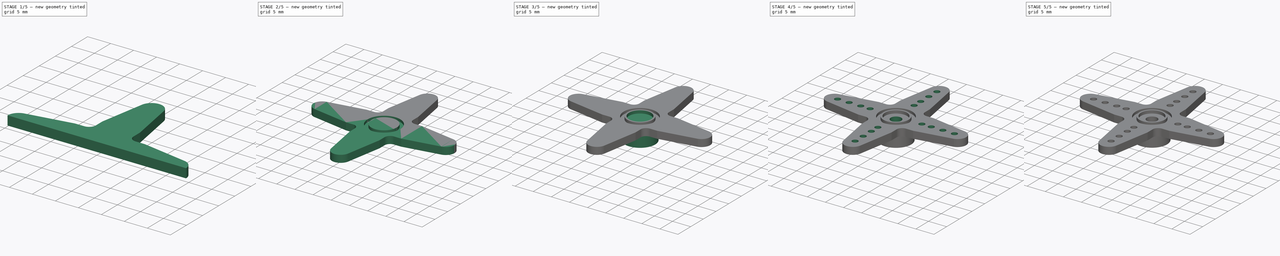
[diagram: build sequence overview — one tinted view per stage of 5, left to right]
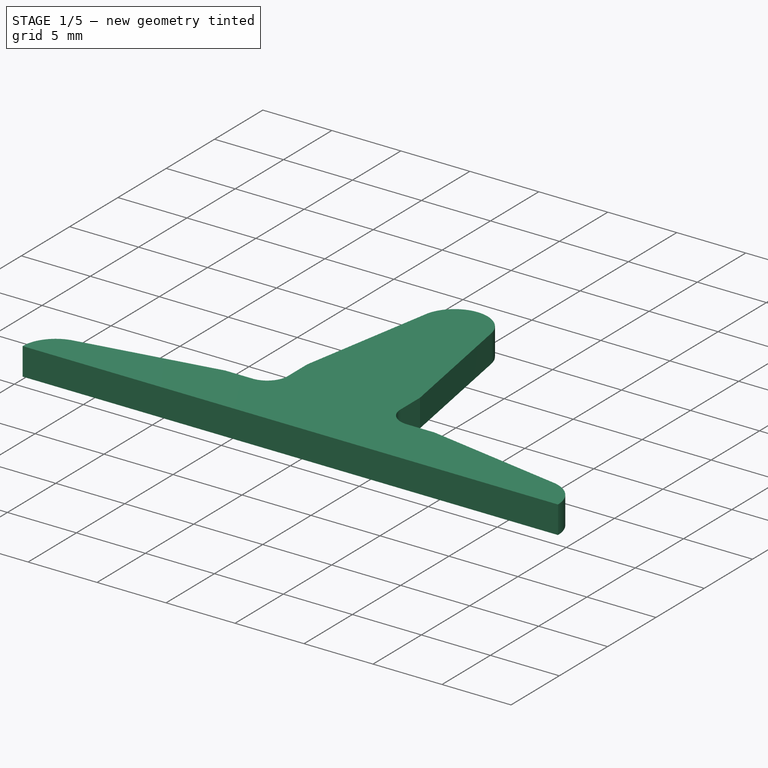
[diagram: stage 1 of 5 — iso view after this stage's code; geometry added in this stage tinted green]
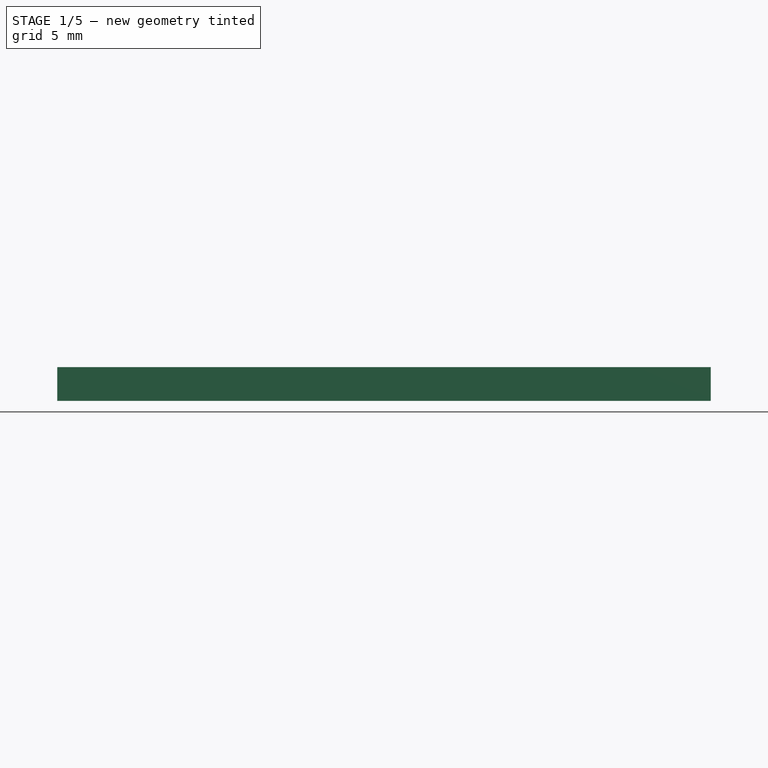
[diagram: stage 1 of 5 — front view after this stage's code; geometry added in this stage tinted green]
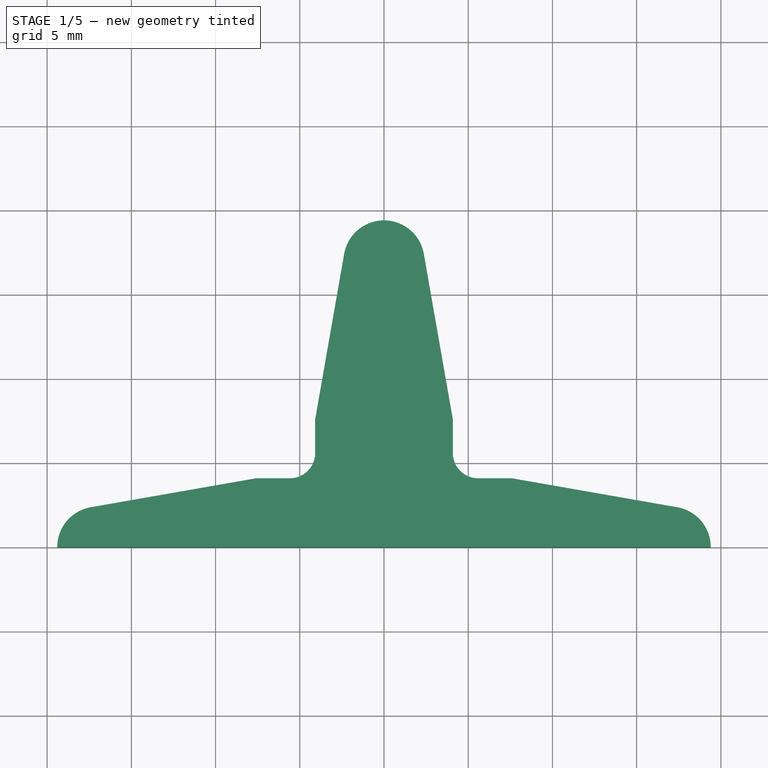
[diagram: stage 1 of 5 — top view after this stage's code; geometry added in this stage tinted green]
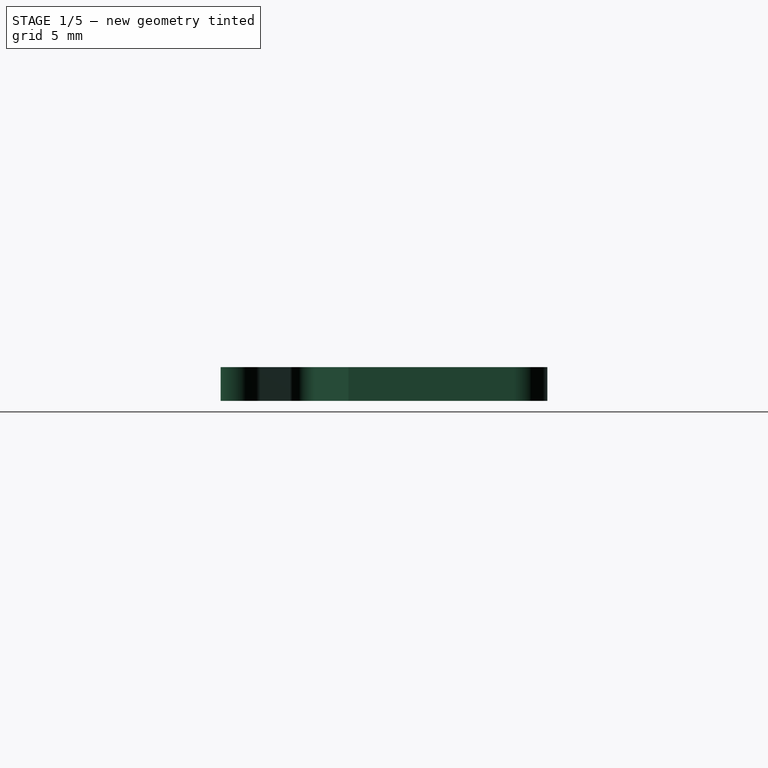
[diagram: stage 1 of 5 — right view after this stage's code; geometry added in this stage tinted green]
FCSTD DOCUMENT  (FreeCAD 0.14R3702 (Git))
Label: SM-S4303R-4-arm-horn
License: CC-BY 3.0
LicenseURL: http://creativecommons.org/licenses/by/3.0/
objects: Sketcher::SketchObject×9, PartDesign::Pocket×5, PartDesign::Pad×4, Part::Mirroring×2, Part::MultiFuse×2, Part::Chamfer×2, PartDesign::PolarPattern×1, Part::Fillet×1
note: 35 computed .brp shape members not serialized (recipe doc carries the construction recipe); baked Part::Feature solids carry a one-line shape summary decoded from their .brp

FEATURE [Sketcher::SketchObject] Sketch  label="horn-top-left-quarter-sketch"
  sketch-geometry (12):
    g0: LineSegment StartX=0 StartY=0 StartZ=0 EndX=0 EndY=19.4 EndZ=0
    g1: LineSegment [constr] StartX=-4.52548 StartY=4.52548 StartZ=0 EndX=0 EndY=0 EndZ=0
    g2: ArcOfCircle CenterX=-5.58614 CenterY=5.58614 CenterZ=0 NormalX=0 NormalY=0 NormalZ=1 Radius=1.5 StartAngle=4.71239 EndAngle=6.28318
    g3: ArcOfCircle CenterX=-17 CenterY=0 CenterZ=0 NormalX=0 NormalY=0 NormalZ=1 Radius=2.4 StartAngle=1.74426 EndAngle=3.14159
    g4: ArcOfCircle CenterX=0 CenterY=17 CenterZ=0 NormalX=0 NormalY=0 NormalZ=1 Radius=2.4 StartAngle=1.5708 EndAngle=2.96813
    g5: LineSegment StartX=-4.08614 StartY=5.58613 StartZ=0 EndX=-4.08614 EndY=7.58613 EndZ=0
    g6: LineSegment StartX=-5.58614 StartY=4.08614 StartZ=0 EndX=-7.58614 EndY=4.08614 EndZ=0
    g7: LineSegment StartX=-4.08614 StartY=7.58613 StartZ=0 EndX=-2.36398 EndY=17.4142 EndZ=0
    g8: LineSegment StartX=-17.4142 StartY=2.36398 StartZ=0 EndX=-7.58614 EndY=4.08614 EndZ=0
    g9: LineSegment [constr] StartX=-7.58614 StartY=4.08614 StartZ=0 EndX=-7.58614 EndY=0 EndZ=0
    g10: LineSegment [constr] StartX=-4.08614 StartY=7.58613 StartZ=0 EndX=0 EndY=7.58613 EndZ=0
    g11: LineSegment StartX=-19.4 StartY=0 StartZ=0 EndX=0 EndY=0 EndZ=0
  constraints (39):
    c: PointOnObject(g0,g-2)
    c: Coincident(g1,g-1)
    c: Angle(g-1,g1) = 2.35619
    c: PointOnObject(g2,g1)
    c: PointOnObject(g1,g2)
    c: Coincident(g4,g0)
    c: PointOnObject(g4,g0)
    c: Equal(g3,g4)
    c: Radius(g3) = 2.4
    c: Coincident(g5,g2)
    c: Vertical(g5)
    c: Coincident(g6,g2)
    c: Horizontal(g6)
    c: Equal(g6,g5)
    c: Tangent(g7,g4)
    c: Coincident(g7,g4)
    c: Coincident(g7,g5)
    c: Coincident(g8,g3)
    c: Coincident(g8,g6)
    c: Tangent(g8,g3)
    c: Tangent(g2,g6)
    c: DistanceX(g6) = -2
    c: Radius(g2) = 1.5
    c: Vertical(g9)
    c: Coincident(g9,g6)
    c: Horizontal(g10)
    c: Coincident(g10,g5)
    c: PointOnObject(g10,g0)
    c: Equal(g9,g10)
    c: Distance(g1) = 6.4
    c: PointOnObject(g3,g-1)
    c: PointOnObject(g3,g-1)
    c: Horizontal(g11)
    c: Coincident(g11,g-1)
    c: Coincident(g11,g3)
    c: Equal(g11,g0)
    c: PointOnObject(g9,g11)
    c: Coincident(g0,g-1)
    c: DistanceX(g11) = 19.4
FEATURE [PartDesign::Pad] Pad  label="horn-top-left-quarter"
  Length = 2
  Length2 = 100
  Sketch = -> Sketch
  Type = 0
FEATURE [Part::Mirroring] Part__Mirroring  label="horn-top-right-quarter"
  Base = (0,0,0)
  Normal = (1,0,0)
  Source = -> Pad
FEATURE [Part::MultiFuse] Fusion  label="Upper-half-horn"
  Shapes = -> [Part__Mirroring,Pad]
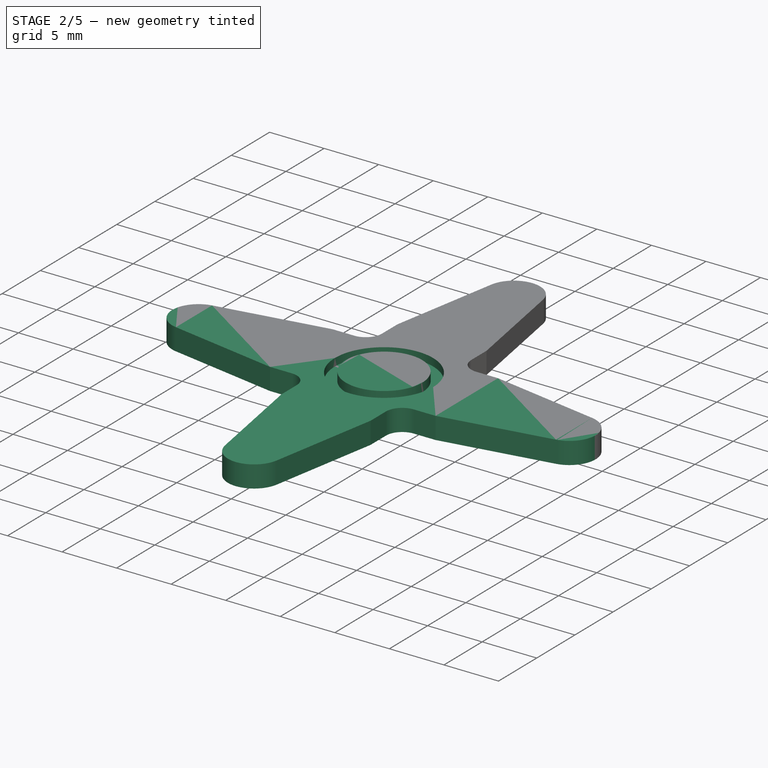
[diagram: stage 2 of 5 — iso view after this stage's code; geometry added in this stage tinted green]
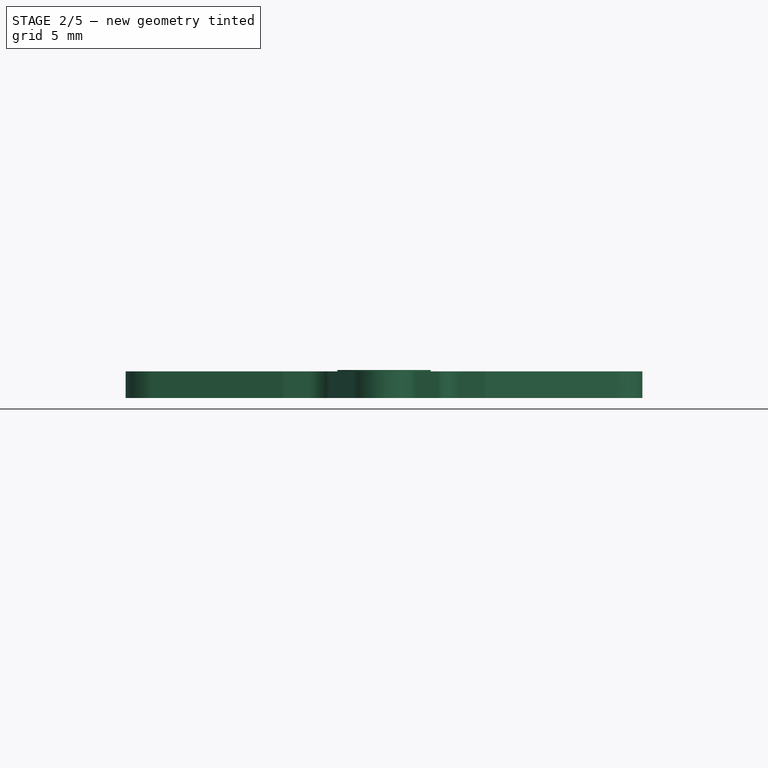
[diagram: stage 2 of 5 — front view after this stage's code; geometry added in this stage tinted green]
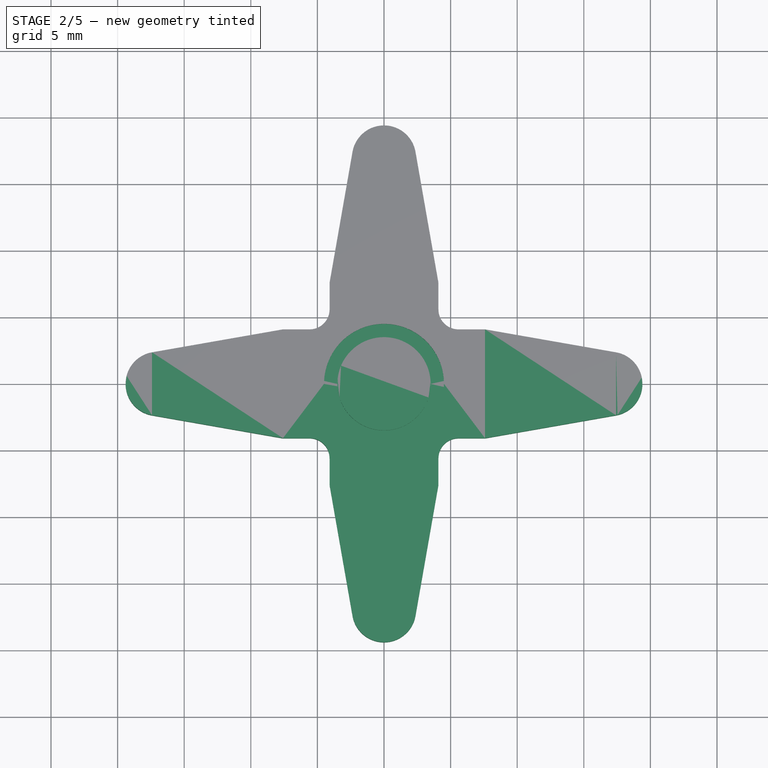
[diagram: stage 2 of 5 — top view after this stage's code; geometry added in this stage tinted green]
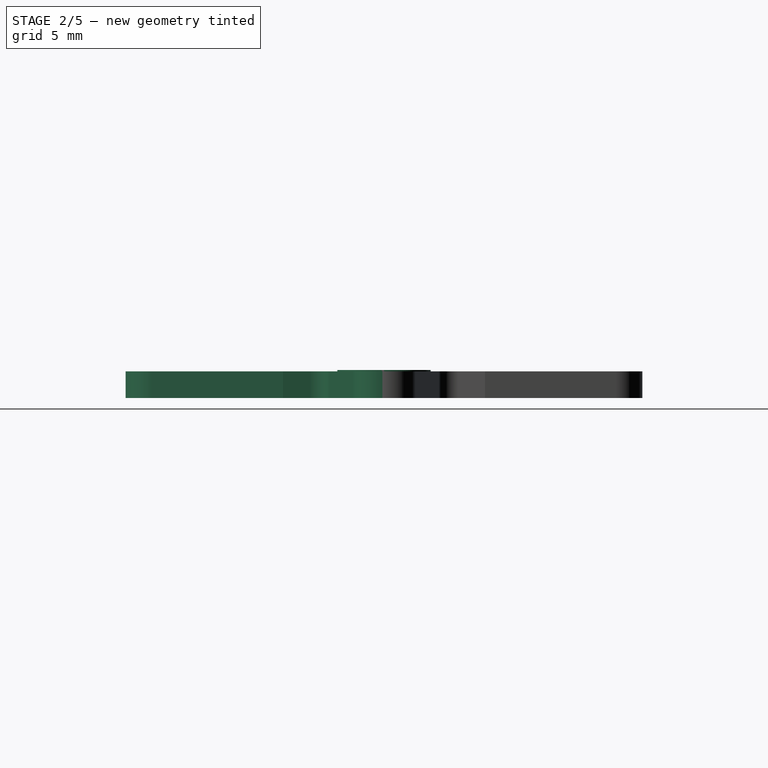
[diagram: stage 2 of 5 — right view after this stage's code; geometry added in this stage tinted green]
FEATURE [Part::Mirroring] Part__Mirroring001  label="bottom-half-horn (Mirror #2)"
  Base = (0,0,0)
  Normal = (0,1,0)
  Source = -> Fusion
FEATURE [Part::MultiFuse] Fusion001  label="horn-body-1"
  Shapes = -> [Part__Mirroring001,Fusion]
FEATURE [Sketcher::SketchObject] Sketch001  label="top-1-sketch"
  Placement = pos=(0,0,2) rot=(0,0,1;0rad)
  Support = -> Fusion001 [Face24]
  sketch-geometry (1):
    g0: Circle CenterX=0 CenterY=0 CenterZ=0 NormalX=0 NormalY=0 NormalZ=1 Radius=4.5
  constraints (2):
    c: Coincident(g0,g-1)
    c: Radius(g0) = 4.5
FEATURE [PartDesign::Pocket] Pocket  label="top-1"
  Length = 0.7
  Sketch = -> Sketch001
  Type = 0
FEATURE [Sketcher::SketchObject] Sketch002  label="top-2-sketch"
  Placement = pos=(0,0,1.3) rot=(0,0,1;0rad)
  Support = -> Pocket [Face28]
  sketch-geometry (1):
    g0: Circle CenterX=0 CenterY=0 CenterZ=0 NormalX=0 NormalY=0 NormalZ=1 Radius=3.5
  constraints (2):
    c: Coincident(g0,g-1)
    c: Radius(g0) = 3.5
FEATURE [PartDesign::Pad] Pad001  label="top-2"
  Length = 0.8
  Length2 = 100
  Sketch = -> Sketch002
  Type = 0
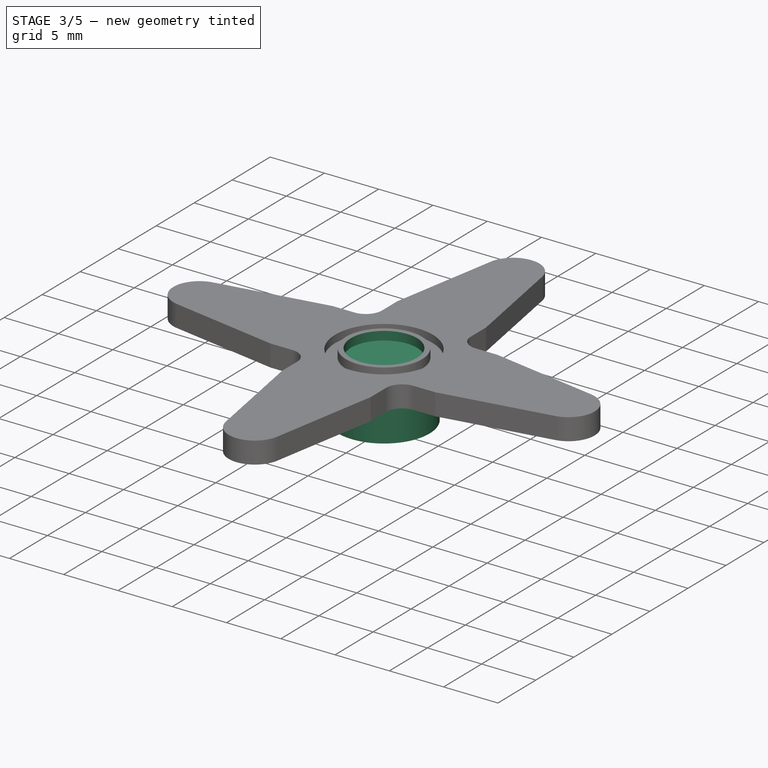
[diagram: stage 3 of 5 — iso view after this stage's code; geometry added in this stage tinted green]
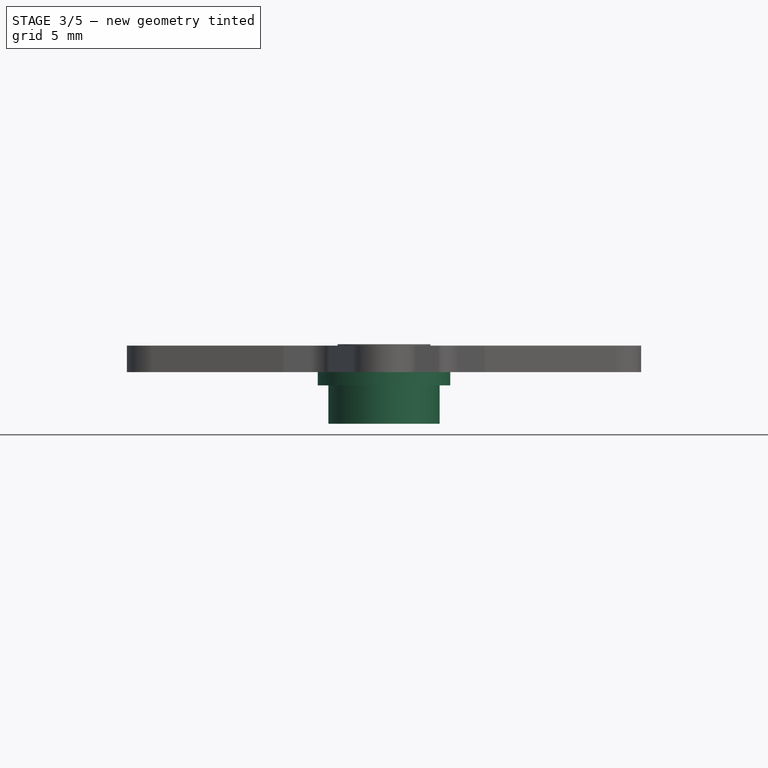
[diagram: stage 3 of 5 — front view after this stage's code; geometry added in this stage tinted green]
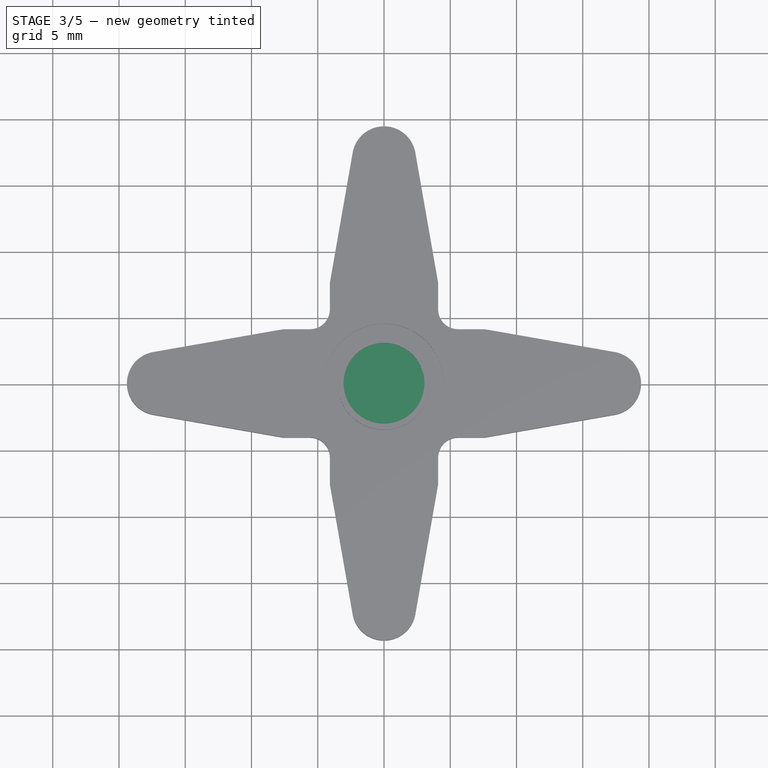
[diagram: stage 3 of 5 — top view after this stage's code; geometry added in this stage tinted green]
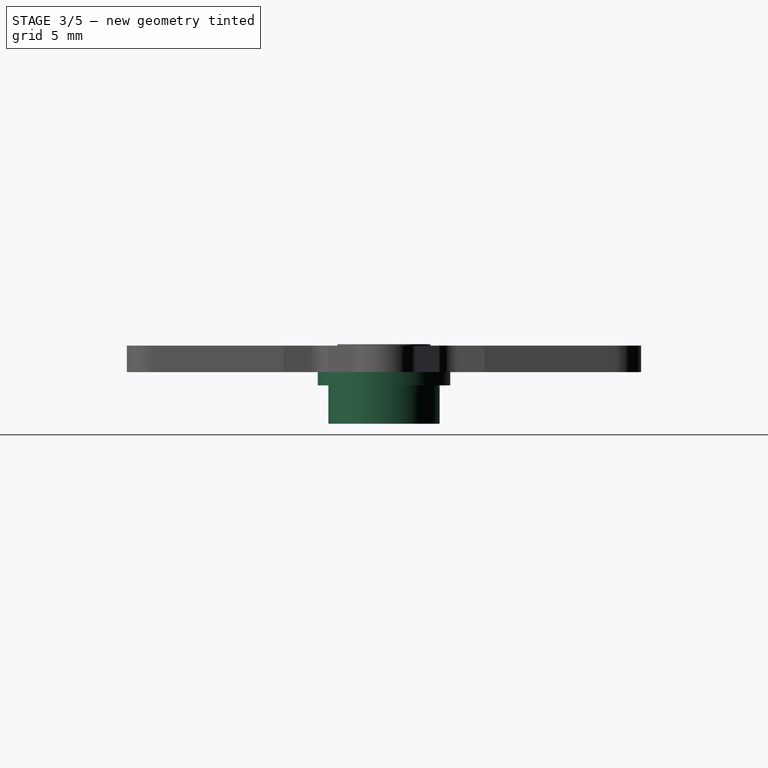
[diagram: stage 3 of 5 — right view after this stage's code; geometry added in this stage tinted green]
FEATURE [Sketcher::SketchObject] Sketch003  label="top-3-sketch"
  Placement = pos=(0,0,2.1) rot=(0,0,1;0rad)
  Support = -> Pad001 [Face30]
  sketch-geometry (1):
    g0: Circle CenterX=0 CenterY=0 CenterZ=0 NormalX=0 NormalY=0 NormalZ=1 Radius=3.05
  constraints (2):
    c: Coincident(g0,g-1)
    c: Radius(g0) = 3.05
FEATURE [PartDesign::Pocket] Pocket001  label="top-3"
  Length = 0.8
  Sketch = -> Sketch003
  Type = 0
FEATURE [Sketcher::SketchObject] Sketch004  label="bottom-1-sketch"
  Placement = pos=(0,0,0) rot=(1,0,0;3.14159rad)
  Support = -> Pocket001 [Face4]
  sketch-geometry (1):
    g0: Circle CenterX=0 CenterY=0 CenterZ=0 NormalX=0 NormalY=0 NormalZ=1 Radius=5
  constraints (2):
    c: Coincident(g0,g-1)
    c: Radius(g0) = 5
FEATURE [PartDesign::Pad] Pad002  label="bottom-1"
  Length = 1
  Length2 = 100
  Sketch = -> Sketch004
  Type = 0
FEATURE [Sketcher::SketchObject] Sketch005  label="bottom-2-sketch"
  Placement = pos=(0,0,-1) rot=(1,0,0;3.14159rad)
  Support = -> Pad002 [Face29]
  sketch-geometry (1):
    g0: Circle CenterX=0 CenterY=0 CenterZ=0 NormalX=0 NormalY=0 NormalZ=1 Radius=4.2
  constraints (2):
    c: Coincident(g0,g-1)
    c: Radius(g0) = 4.2
FEATURE [PartDesign::Pad] Pad003  label="bottom-2"
  Length = 2.9
  Length2 = 100
  Sketch = -> Sketch005
  Type = 0
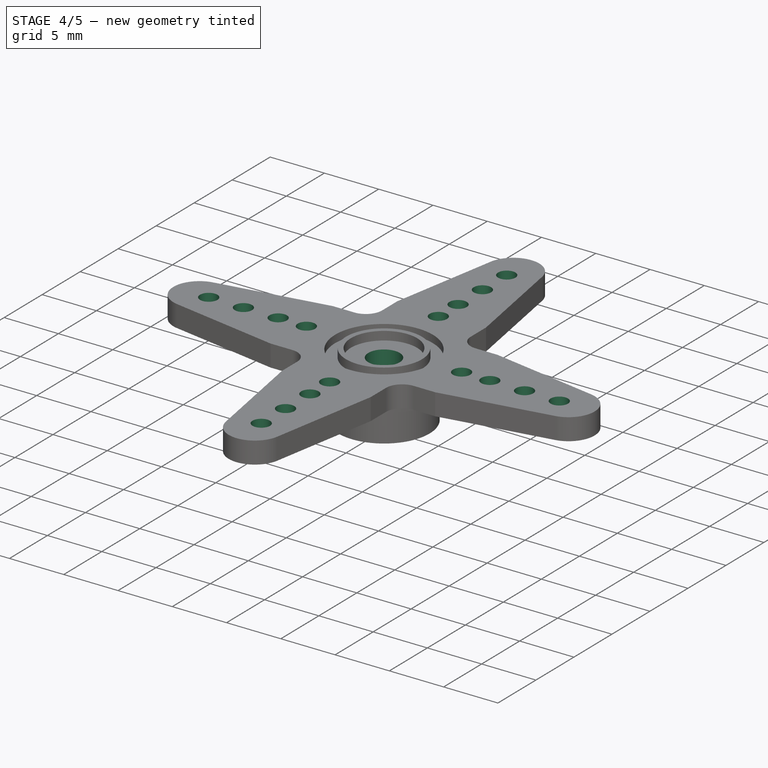
[diagram: stage 4 of 5 — iso view after this stage's code; geometry added in this stage tinted green]
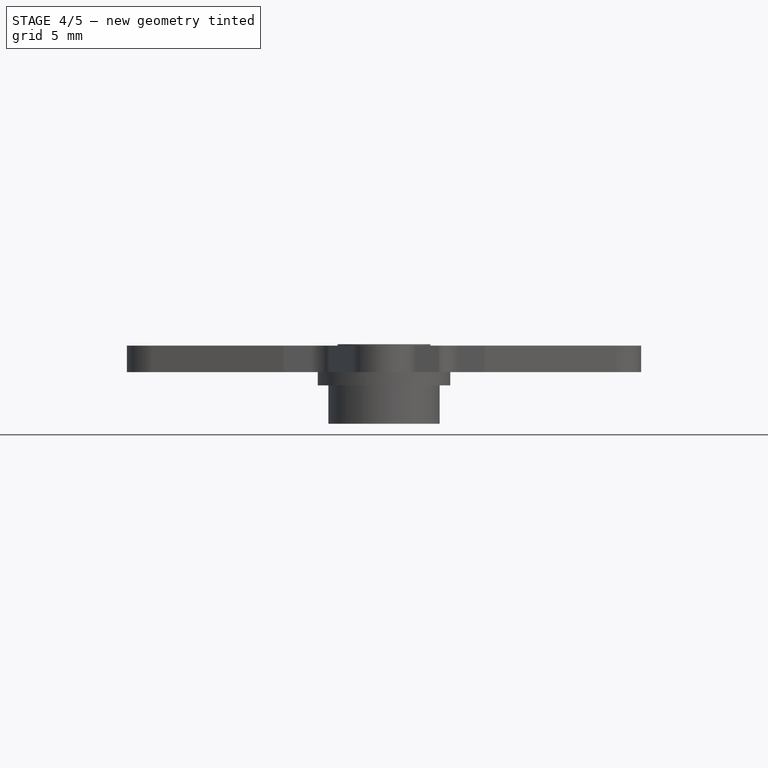
[diagram: stage 4 of 5 — front view after this stage's code; geometry added in this stage tinted green]
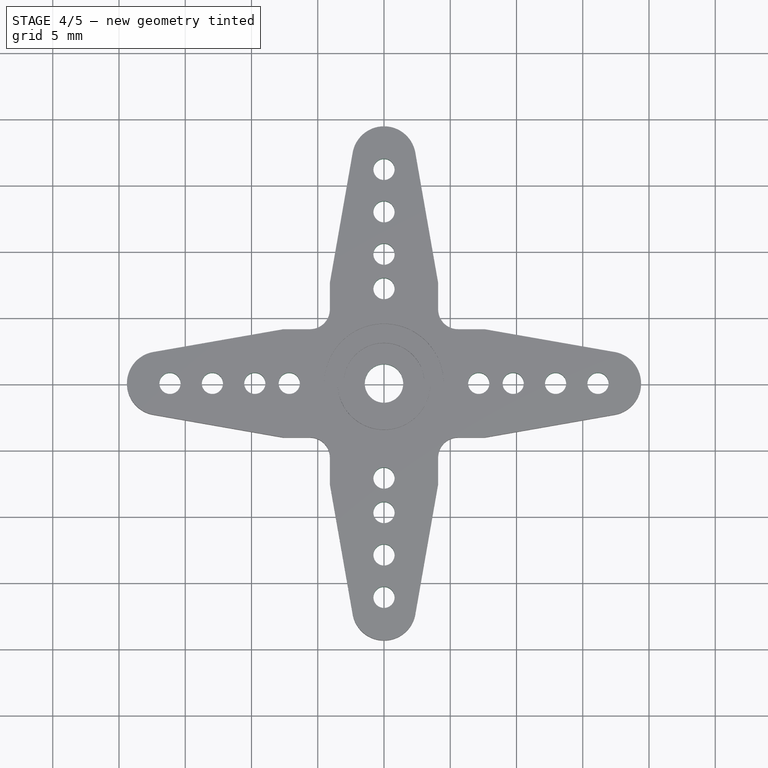
[diagram: stage 4 of 5 — top view after this stage's code; geometry added in this stage tinted green]
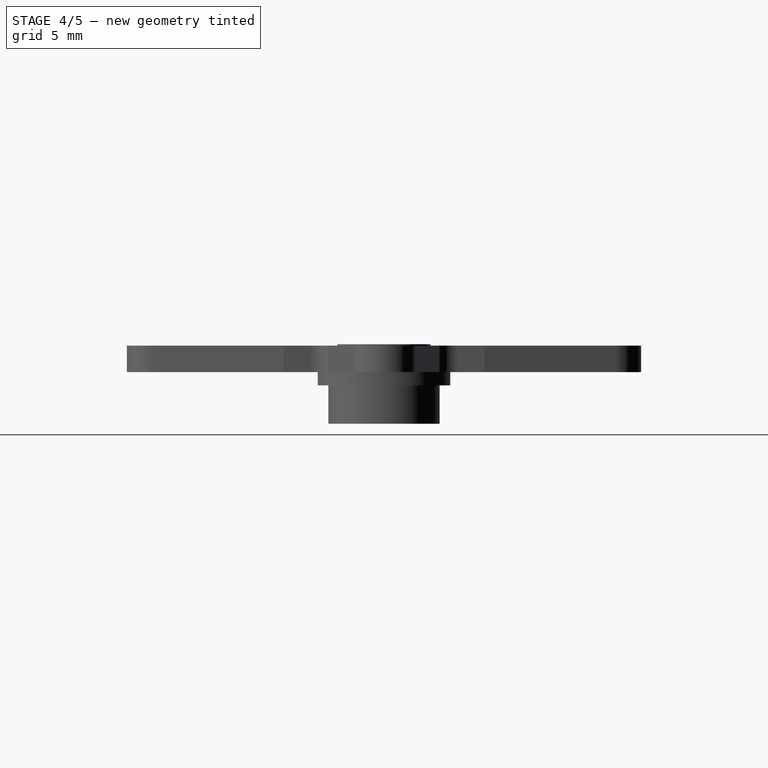
[diagram: stage 4 of 5 — right view after this stage's code; geometry added in this stage tinted green]
FEATURE [Sketcher::SketchObject] Sketch006  label="bottom-3-sketch"
  Placement = pos=(0,0,-3.9) rot=(1,0,0;3.14159rad)
  Support = -> Pad003 [Face33]
  sketch-geometry (1):
    g0: Circle CenterX=0 CenterY=0 CenterZ=0 NormalX=0 NormalY=0 NormalZ=1 Radius=2.95
  constraints (2):
    c: Coincident(g0,g-1)
    c: Radius(g0) = 2.95
FEATURE [PartDesign::Pocket] Pocket002  label="bottom-3"
  Length = 3.8
  Sketch = -> Sketch006
  Type = 0
FEATURE [Sketcher::SketchObject] Sketch007  label="horn-screw-drill-sketch"
  Placement = pos=(0,0,1.3) rot=(0,0,1;0rad)
  Support = -> Pocket002 [Face38]
  sketch-geometry (1):
    g0: Circle CenterX=0 CenterY=0 CenterZ=0 NormalX=0 NormalY=0 NormalZ=1 Radius=1.45
  constraints (2):
    c: Coincident(g0,g-1)
    c: Radius(g0) = 1.45
FEATURE [PartDesign::Pocket] Pocket003  label="horn-screw-drill"
  Length = 5
  Sketch = -> Sketch007
  Type = 1
FEATURE [Sketcher::SketchObject] Sketch008  label="drills-master-sketch"
  Placement = pos=(0,0,2) rot=(0,0,1;0rad)
  Support = -> Pocket003 [Face5]
  sketch-geometry (7):
    g0: Circle CenterX=0 CenterY=16.15 CenterZ=0 NormalX=0 NormalY=0 NormalZ=1 Radius=0.8
    g1: Circle CenterX=0 CenterY=12.95 CenterZ=0 NormalX=0 NormalY=0 NormalZ=1 Radius=0.8
    g2: Circle CenterX=0 CenterY=9.75 CenterZ=0 NormalX=0 NormalY=0 NormalZ=1 Radius=0.8
    g3: Circle CenterX=0 CenterY=7.15 CenterZ=0 NormalX=0 NormalY=0 NormalZ=1 Radius=0.8
    g4: LineSegment [constr] StartX=0 StartY=16.15 StartZ=0 EndX=0 EndY=12.95 EndZ=0
    g5: LineSegment [constr] StartX=0 StartY=12.95 StartZ=0 EndX=0 EndY=9.75 EndZ=0
    g6: LineSegment [constr] StartX=0 StartY=9.75 StartZ=0 EndX=0 EndY=7.15 EndZ=0
  constraints (19):
    c: PointOnObject(g0,g-2)
    c: PointOnObject(g3,g-2)
    c: Equal(g0,g1)
    c: Equal(g1,g2)
    c: Equal(g2,g3)
    c: Radius(g0) = 0.8
    c: DistanceY(g-1,g0) = 16.15
    c: Vertical(g4)
    c: Coincident(g4,g0)
    c: Coincident(g4,g1)
    c: Vertical(g5)
    c: Coincident(g5,g1)
    c: Coincident(g5,g2)
    c: Equal(g4,g5)
    c: Coincident(g6,g2)
    c: Vertical(g6)
    c: Coincident(g6,g3)
    c: DistanceY(g4) = -3.2
    c: DistanceY(g6) = -2.6
FEATURE [PartDesign::Pocket] Pocket004  label="drills-master"
  Length = 5
  Sketch = -> Sketch008
  Type = 1
FEATURE [PartDesign::PolarPattern] PolarPattern  label="horn-drills"
  Angle = 360
  Axis = -> Sketch008 [N_Axis]
  Occurrences = 4
  Originals = -> [Pocket004]
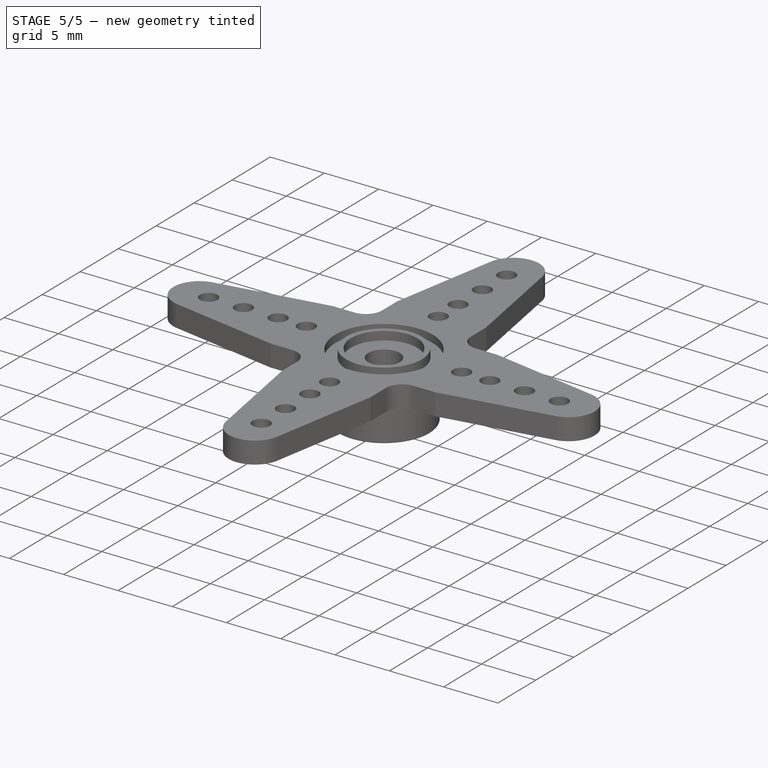
[diagram: stage 5 of 5 — iso view after this stage's code; geometry added in this stage tinted green]
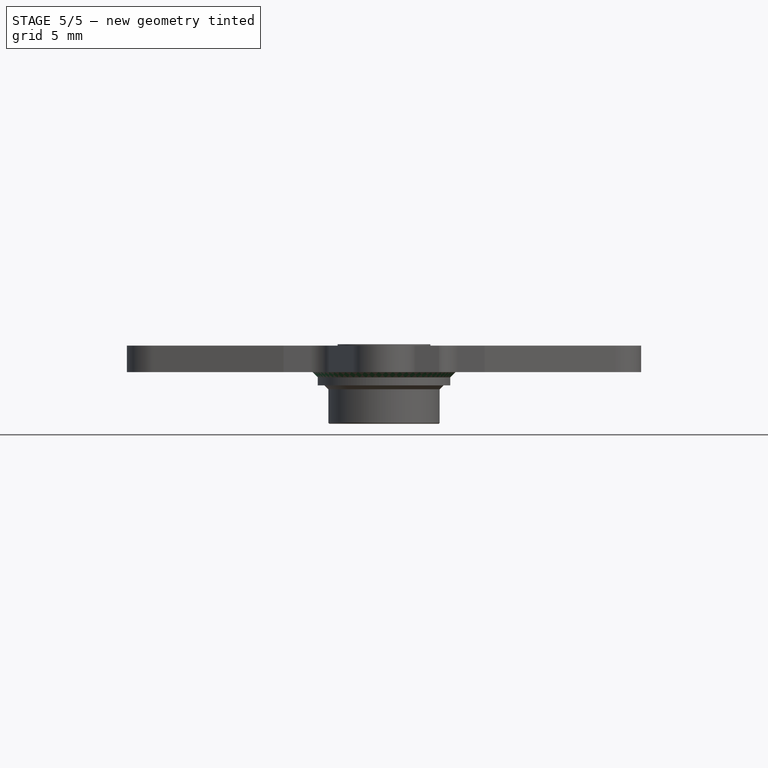
[diagram: stage 5 of 5 — front view after this stage's code; geometry added in this stage tinted green]
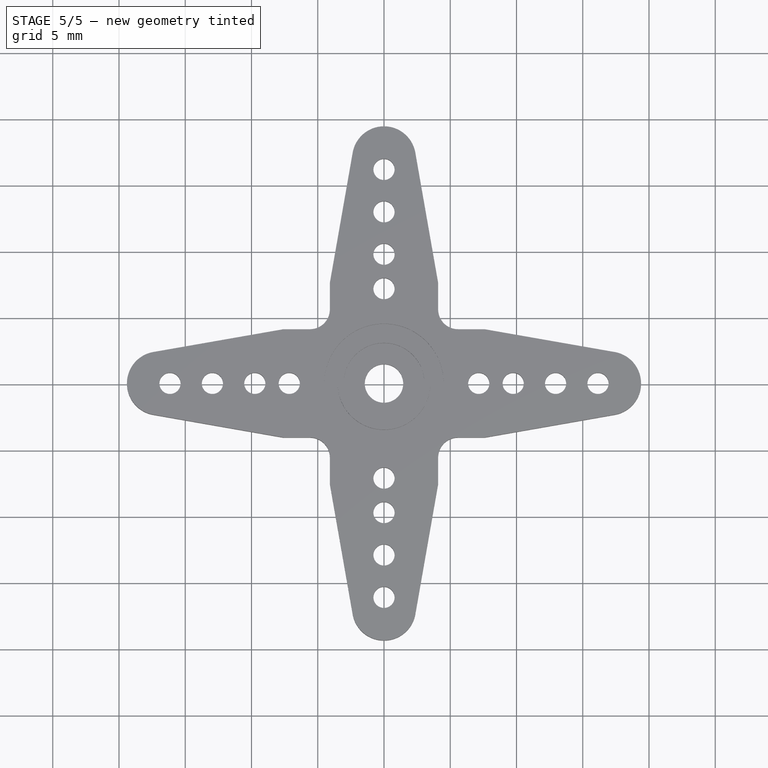
[diagram: stage 5 of 5 — top view after this stage's code; geometry added in this stage tinted green]
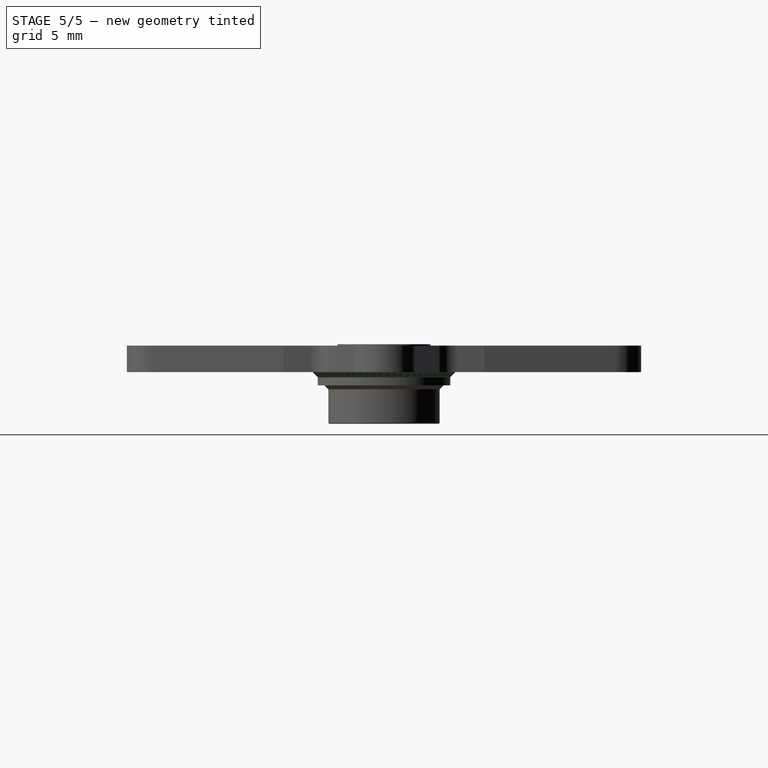
[diagram: stage 5 of 5 — right view after this stage's code; geometry added in this stage tinted green]
FEATURE [Part::Chamfer] Chamfer
  Base = -> PolarPattern
  Edges = 1 edges r=0.4: [Edge37]
FEATURE [Part::Chamfer] Chamfer001
  Base = -> Chamfer
  Edges = 1 edges r=0.3: [Edge135]
FEATURE [Part::Fillet] Fillet  label="horn-final"
  Base = -> Chamfer001
  Edges = 1 edges r=0.1: [Edge8]
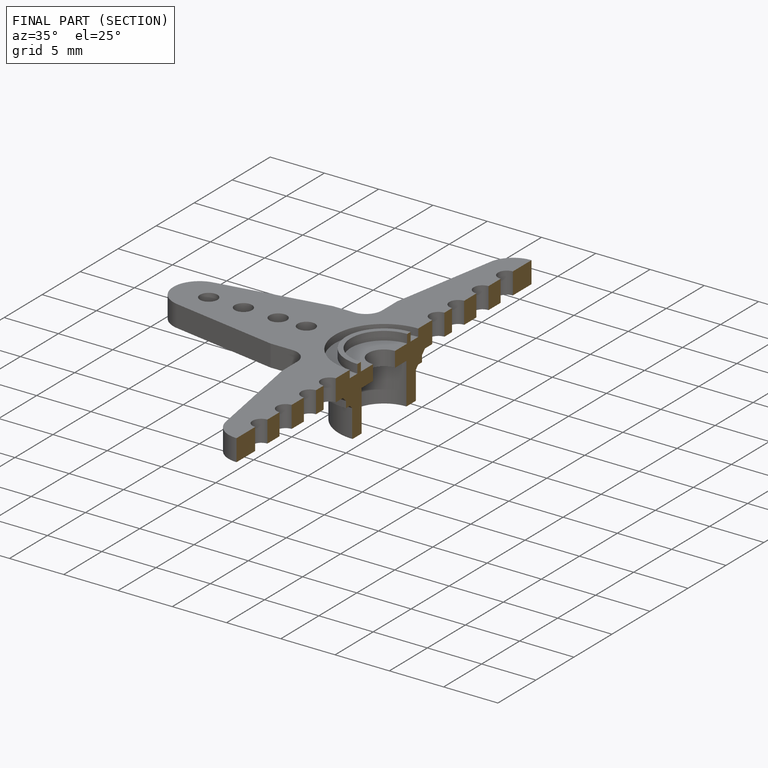
[diagram: finished part — half-section view (interior)]
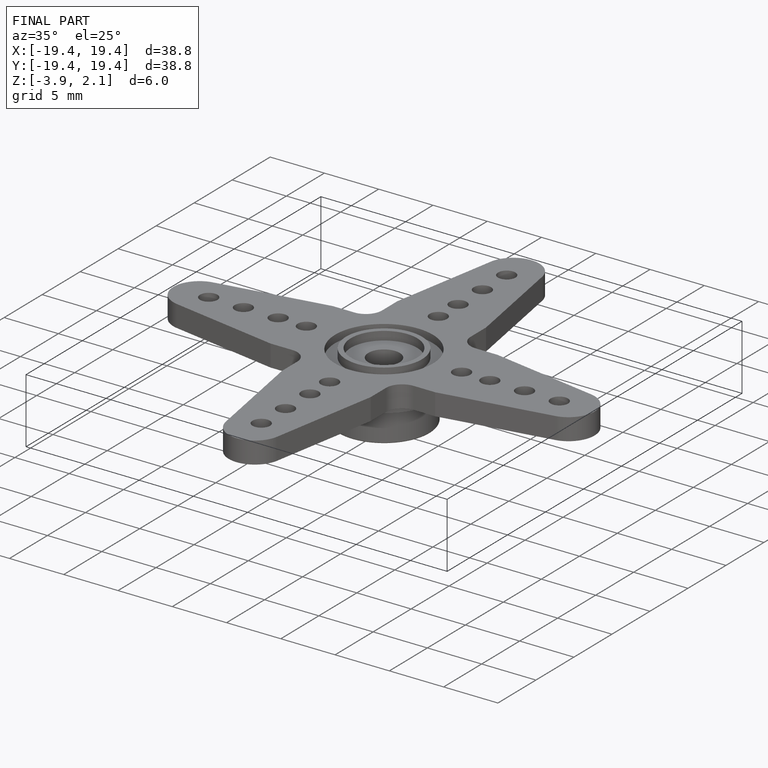
[diagram: finished part — iso view with bounding-box wireframe]
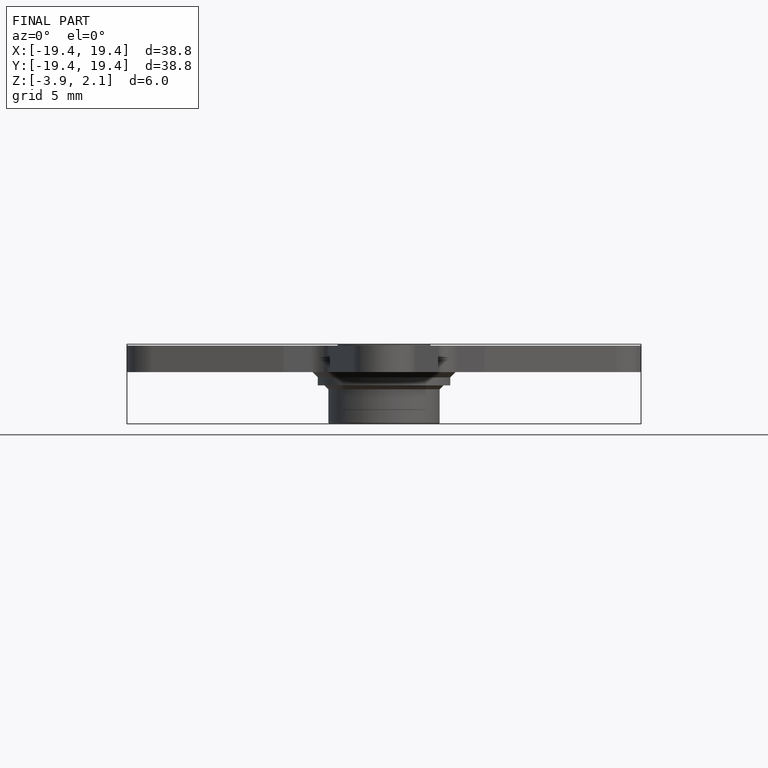
[diagram: finished part — front view with bounding-box wireframe]
